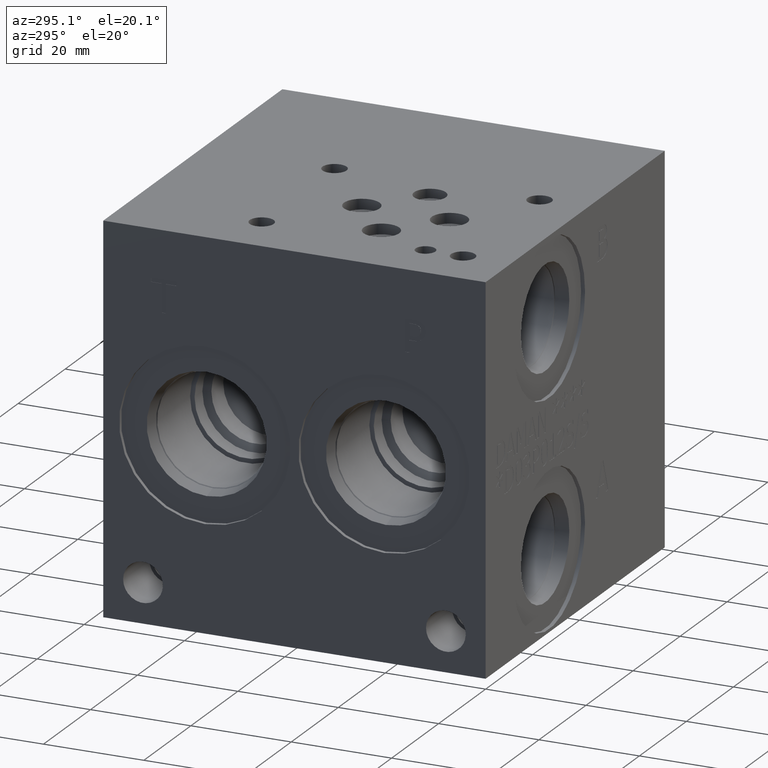
[diagram: clean part render]
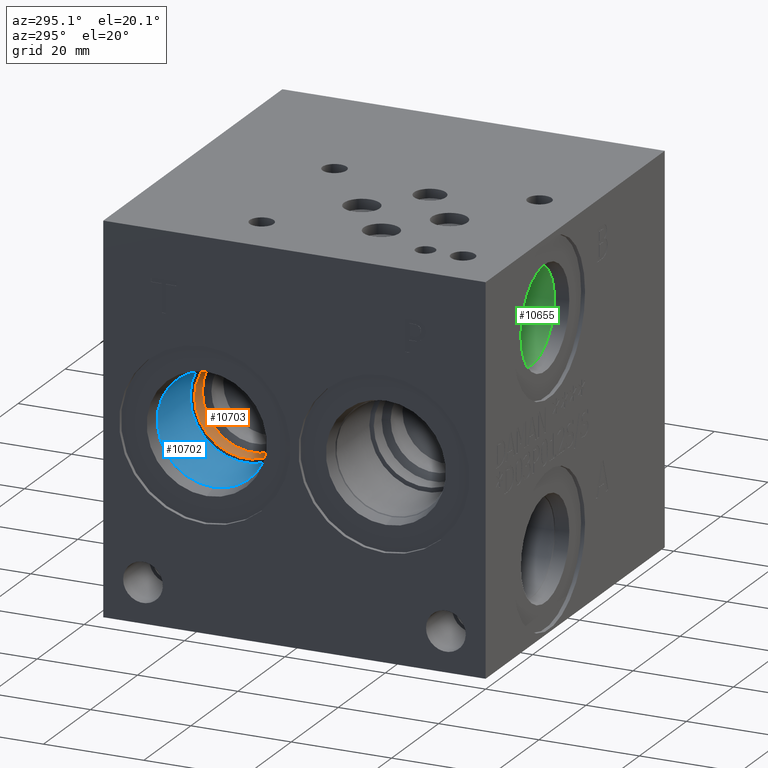
[diagram: same view with three faces highlighted in distinct colors, each labeled with its STEP entity id]
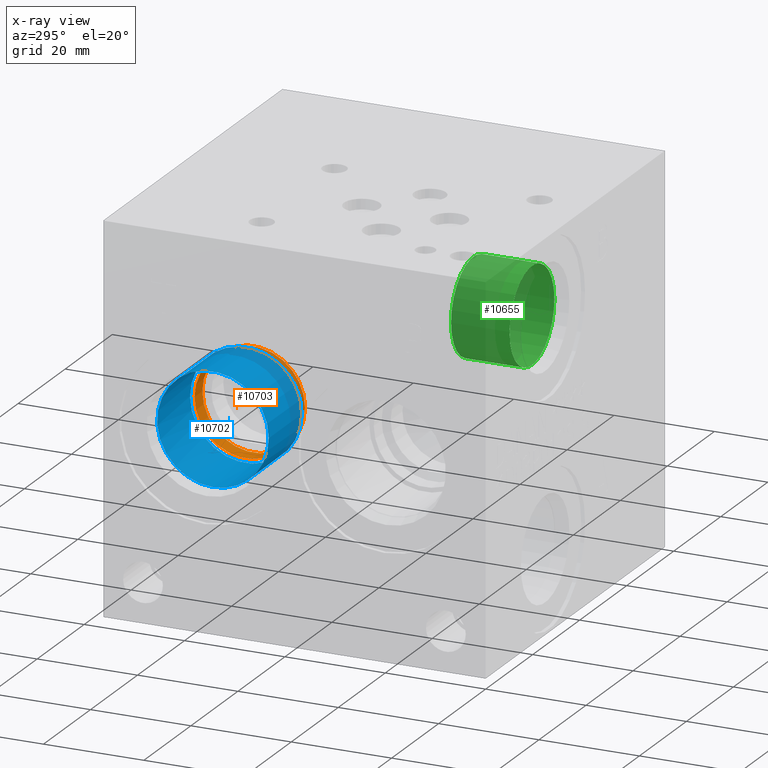
[diagram: x-ray of the same camera — body ghosted, the three highlighted faces saturated]
A machine part, auxiliary view with three faces highlighted in distinct colors.
The next image is the same camera in x-ray (body ghosted, the three faces saturated) — at least one of them is partly hidden behind the body in this view.
Their STEP definitions:

[orange] entity #10703 — the highlighted cylindrical surface (bore or boss wall) has radius 10.2235 mm, axis along (-1, 0, 0).
#55=CYLINDRICAL_SURFACE('',#11294,10.2235);
#274=CIRCLE('',#11285,10.2235);
#275=CIRCLE('',#11286,10.2235);
#278=CIRCLE('',#11290,10.2235);
#1349=FACE_OUTER_BOUND('',#1960,.T.);
#1960=EDGE_LOOP('',(#9247,#9248,#9249,#9250,#9251));
#2971=LINE('',#18422,#3952);
#3952=VECTOR('',#13412,10.2235);
#4941=VERTEX_POINT('',#18403);
#4942=VERTEX_POINT('',#18404);
#4945=VERTEX_POINT('',#18413);
#6405=EDGE_CURVE('',#4941,#4942,#274,.T.);
#6407=EDGE_CURVE('',#4942,#4941,#275,.T.);
#6410=EDGE_CURVE('',#4945,#4945,#278,.T.);
#6414=EDGE_CURVE('',#4945,#4942,#2971,.T.);
#9247=ORIENTED_EDGE('',*,*,#6410,.T.);
#9248=ORIENTED_EDGE('',*,*,#6414,.T.);
#9249=ORIENTED_EDGE('',*,*,#6405,.F.);
#9250=ORIENTED_EDGE('',*,*,#6407,.F.);
#9251=ORIENTED_EDGE('',*,*,#6414,.F.);
#10703=ADVANCED_FACE('',(#1349),#55,.F.);
#11285=AXIS2_PLACEMENT_3D('',#18405,#13390,#13391);
#11286=AXIS2_PLACEMENT_3D('',#18407,#13393,#13394);
#11290=AXIS2_PLACEMENT_3D('',#18414,#13401,#13402);
#11294=AXIS2_PLACEMENT_3D('',#18421,#13410,#13411);
#13390=DIRECTION('center_axis',(-1.,0.,0.));
#13391=DIRECTION('ref_axis',(0.,1.,0.));
#13393=DIRECTION('center_axis',(-1.,0.,0.));
#13394=DIRECTION('ref_axis',(0.,1.,0.));
#13401=DIRECTION('center_axis',(-1.,0.,0.));
#13402=DIRECTION('ref_axis',(0.,1.,0.));
#13410=DIRECTION('center_axis',(-1.,0.,0.));
#13411=DIRECTION('ref_axis',(0.,1.,0.));
#13412=DIRECTION('',(1.,0.,0.));
#18403=CARTESIAN_POINT('',(20.7772,66.1797,38.1));
#18404=CARTESIAN_POINT('',(20.7772,45.7327,38.1));
#18405=CARTESIAN_POINT('Origin',(20.7772,55.9562,38.1));
#18407=CARTESIAN_POINT('Origin',(20.7772,55.9562,38.1));
#18413=CARTESIAN_POINT('',(17.4498,45.7327,38.1));
#18414=CARTESIAN_POINT('Origin',(17.4498,55.9562,38.1));
#18421=CARTESIAN_POINT('Origin',(10.3886,55.9562,38.1));
#18422=CARTESIAN_POINT('',(10.3886,45.7327,38.1));

[blue] entity #10702 — the highlighted cylindrical surface (bore or boss wall) has radius 11.115 mm, axis along (-1, 0, 0).
#54=CYLINDRICAL_SURFACE('',#11291,11.115);
#276=CIRCLE('',#11288,11.115);
#277=CIRCLE('',#11289,11.115);
#279=CIRCLE('',#11292,11.115);
#280=CIRCLE('',#11293,11.115);
#1348=FACE_OUTER_BOUND('',#1959,.T.);
#1959=EDGE_LOOP('',(#9241,#9242,#9243,#9244,#9245,#9246));
#2970=LINE('',#18419,#3951);
#3951=VECTOR('',#13407,11.115);
#4943=VERTEX_POINT('',#18409);
#4944=VERTEX_POINT('',#18410);
#4946=VERTEX_POINT('',#18416);
#4947=VERTEX_POINT('',#18417);
#6408=EDGE_CURVE('',#4943,#4944,#276,.T.);
#6409=EDGE_CURVE('',#4944,#4943,#277,.T.);
#6411=EDGE_CURVE('',#4946,#4947,#279,.T.);
#6412=EDGE_CURVE('',#4946,#4944,#2970,.T.);
#6413=EDGE_CURVE('',#4947,#4946,#280,.T.);
#9241=ORIENTED_EDGE('',*,*,#6411,.F.);
#9242=ORIENTED_EDGE('',*,*,#6412,.T.);
#9243=ORIENTED_EDGE('',*,*,#6408,.F.);
#9244=ORIENTED_EDGE('',*,*,#6409,.F.);
#9245=ORIENTED_EDGE('',*,*,#6412,.F.);
#9246=ORIENTED_EDGE('',*,*,#6413,.F.);
#10702=ADVANCED_FACE('',(#1348),#54,.F.);
#11288=AXIS2_PLACEMENT_3D('',#18411,#13397,#13398);
#11289=AXIS2_PLACEMENT_3D('',#18412,#13399,#13400);
#11291=AXIS2_PLACEMENT_3D('',#18415,#13403,#13404);
#11292=AXIS2_PLACEMENT_3D('',#18418,#13405,#13406);
#11293=AXIS2_PLACEMENT_3D('',#18420,#13408,#13409);
#13397=DIRECTION('center_axis',(-1.,0.,0.));
#13398=DIRECTION('ref_axis',(0.,1.,0.));
#13399=DIRECTION('center_axis',(-1.,0.,0.));
#13400=DIRECTION('ref_axis',(0.,1.,0.));
#13403=DIRECTION('center_axis',(-1.,0.,0.));
#13404=DIRECTION('ref_axis',(0.,1.,0.));
#13405=DIRECTION('center_axis',(1.,0.,0.));
#13406=DIRECTION('ref_axis',(0.,1.,0.));
#13407=DIRECTION('',(1.,0.,0.));
#13408=DIRECTION('center_axis',(1.,0.,0.));
#13409=DIRECTION('ref_axis',(0.,1.,0.));
#18409=CARTESIAN_POINT('',(17.4498,67.0712,38.1));
#18410=CARTESIAN_POINT('',(17.4498,44.8412,38.1));
#18411=CARTESIAN_POINT('Origin',(17.4498,55.9562,38.1));
#18412=CARTESIAN_POINT('Origin',(17.4498,55.9562,38.1));
#18415=CARTESIAN_POINT('Origin',(8.7249,55.9562,38.1));
#18416=CARTESIAN_POINT('',(3.4646,44.8412,38.1));
#18417=CARTESIAN_POINT('',(3.4646,55.9562,26.985));
#18418=CARTESIAN_POINT('Origin',(3.4646,55.9562,38.1));
#18419=CARTESIAN_POINT('',(8.7249,44.8412,38.1));
#18420=CARTESIAN_POINT('Origin',(3.4646,55.9562,38.1));

[green] entity #10655 — the highlighted cylindrical surface (bore or boss wall) has radius 9.525 mm, axis along (0, -1, 0).
#32=CYLINDRICAL_SURFACE('',#11165,9.525);
#197=CIRCLE('',#11162,9.525);
#198=CIRCLE('',#11163,9.525);
#200=CIRCLE('',#11166,9.525);
#1301=FACE_OUTER_BOUND('',#1904,.T.);
#1904=EDGE_LOOP('',(#8988,#8989,#8990,#8991,#8992));
#2933=LINE('',#18077,#3914);
#3914=VECTOR('',#13118,9.525);
#4855=VERTEX_POINT('',#18068);
#4856=VERTEX_POINT('',#18069);
#4858=VERTEX_POINT('',#18075);
#6283=EDGE_CURVE('',#4855,#4856,#197,.T.);
#6284=EDGE_CURVE('',#4856,#4855,#198,.T.);
#6286=EDGE_CURVE('',#4858,#4858,#200,.T.);
#6287=EDGE_CURVE('',#4858,#4856,#2933,.T.);
#8988=ORIENTED_EDGE('',*,*,#6286,.F.);
#8989=ORIENTED_EDGE('',*,*,#6287,.T.);
#8990=ORIENTED_EDGE('',*,*,#6283,.F.);
#8991=ORIENTED_EDGE('',*,*,#6284,.F.);
#8992=ORIENTED_EDGE('',*,*,#6287,.F.);
#10655=ADVANCED_FACE('',(#1301),#32,.F.);
#11162=AXIS2_PLACEMENT_3D('',#18070,#13108,#13109);
#11163=AXIS2_PLACEMENT_3D('',#18071,#13110,#13111);
#11165=AXIS2_PLACEMENT_3D('',#18074,#13114,#13115);
#11166=AXIS2_PLACEMENT_3D('',#18076,#13116,#13117);
#13108=DIRECTION('center_axis',(0.,-1.,0.));
#13109=DIRECTION('ref_axis',(1.,0.,0.));
#13110=DIRECTION('center_axis',(0.,-1.,0.));
#13111=DIRECTION('ref_axis',(1.,0.,0.));
#13114=DIRECTION('center_axis',(0.,-1.,0.));
#13115=DIRECTION('ref_axis',(1.,0.,0.));
#13116=DIRECTION('center_axis',(0.,1.,0.));
#13117=DIRECTION('ref_axis',(1.,0.,0.));
#13118=DIRECTION('',(0.,1.,0.));
#18068=CARTESIAN_POINT('',(36.4998,15.0622,60.325));
#18069=CARTESIAN_POINT('',(17.4498,15.0622,60.325));
#18070=CARTESIAN_POINT('Origin',(26.9748,15.0622,60.325));
#18071=CARTESIAN_POINT('Origin',(26.9748,15.0622,60.325));
#18074=CARTESIAN_POINT('Origin',(26.9748,7.5311,60.325));
#18075=CARTESIAN_POINT('',(17.4498,3.4036,60.325));
#18076=CARTESIAN_POINT('Origin',(26.9748,3.4036,60.325));
#18077=CARTESIAN_POINT('',(17.4498,7.5311,60.325));